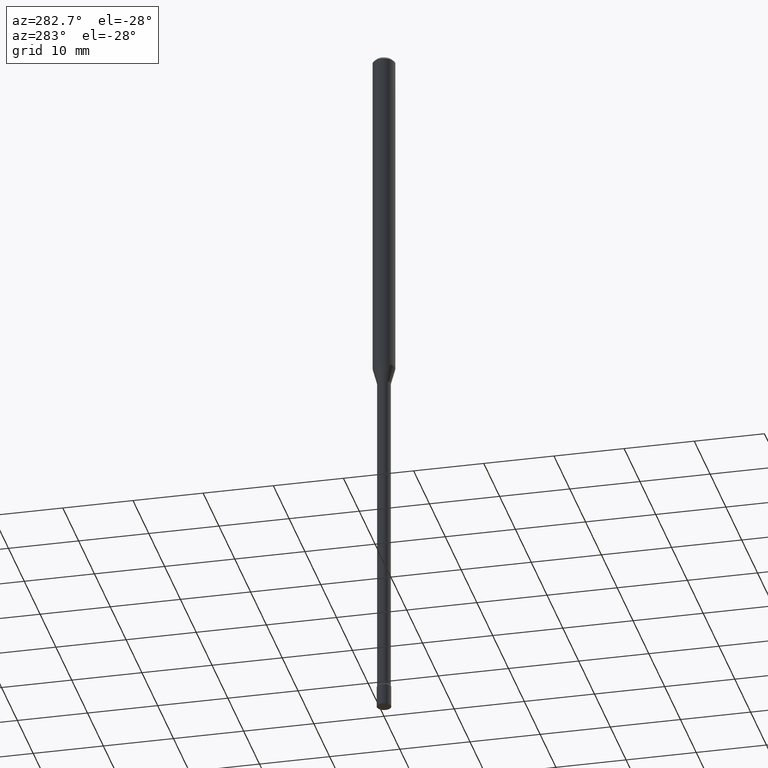
[diagram: clean part render]
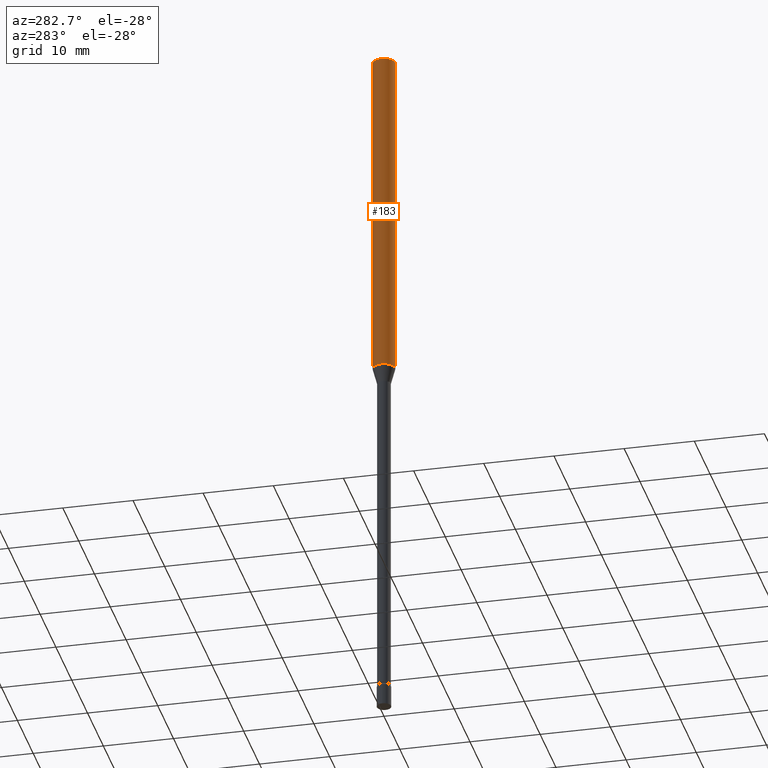
[diagram: same view with one face highlighted and labeled with its STEP entity id]
A machine part, auxiliary view. The second image highlights one B-rep face of the part: STEP entity #183.
In plain terms, the highlighted cylindrical surface (edge-blend (fillet) strip) has radius 1.5875 mm, axis along (-0, 0, 1).
Its self-contained STEP definition (entity closure, byte-faithful):
#2 = AXIS2_PLACEMENT_3D ( 'NONE', #36, #193, #519 ) ;
#16 = ORIENTED_EDGE ( 'NONE', *, *, #358, .F. ) ;
#26 = DIRECTION ( 'NONE',  ( -2.445467241242069311E-29, 3.491483579930689334E-15, 1.000000000000000000 ) ) ;
#31 = FACE_OUTER_BOUND ( 'NONE', #442, .T. ) ;
#36 = CARTESIAN_POINT ( 'NONE',  ( 4.663681943469377038E-29, -6.658510346420442801E-15, -1.907071934891535037 ) ) ;
#41 = CIRCLE ( 'NONE', #108, 0.06250000000000000000 ) ;
#50 = CARTESIAN_POINT ( 'NONE',  ( 3.668200861863111078E-31, -5.237225369896044256E-17, -0.01500000000000003067 ) ) ;
#76 = DIRECTION ( 'NONE',  ( -6.982962677686265922E-15, -1.000000000000000000, 3.491483579930688939E-15 ) ) ;
#99 = CARTESIAN_POINT ( 'NONE',  ( 0.000000000000000000, 0.000000000000000000, 0.000000000000000000 ) ) ;
#102 = EDGE_CURVE ( 'NONE', #189, #355, #353, .T. ) ;
#106 = CARTESIAN_POINT ( 'NONE',  ( 4.440892098500625669E-16, 0.06250000000000000000, -2.182177237456680587E-16 ) ) ;
#108 = AXIS2_PLACEMENT_3D ( 'NONE', #50, #465, #348 ) ;
#110 = EDGE_CURVE ( 'NONE', #189, #425, #342, .T. ) ;
#128 = CARTESIAN_POINT ( 'NONE',  ( -4.364351673553912750E-16, -0.06250000000000005551, -0.01499999999999981209 ) ) ;
#137 = ORIENTED_EDGE ( 'NONE', *, *, #110, .F. ) ;
#183 = ADVANCED_FACE ( 'NONE', ( #31 ), #468, .T. ) ;
#189 = VERTEX_POINT ( 'NONE', #322 ) ;
#190 = EDGE_CURVE ( 'NONE', #355, #247, #320, .T. ) ;
#193 = DIRECTION ( 'NONE',  ( -2.445467241242069311E-29, 3.491483579930688939E-15, 1.000000000000000000 ) ) ;
#213 = AXIS2_PLACEMENT_3D ( 'NONE', #99, #354, #76 ) ;
#244 = CARTESIAN_POINT ( 'NONE',  ( -4.364351673553916201E-16, -0.06250000000000000000, 2.182177237456680587E-16 ) ) ;
#247 = VERTEX_POINT ( 'NONE', #128 ) ;
#306 = DIRECTION ( 'NONE',  ( -2.445467241242069311E-29, 3.491483579930689334E-15, 1.000000000000000000 ) ) ;
#317 = VECTOR ( 'NONE', #26, 39.37007874015748143 ) ;
#320 = LINE ( 'NONE', #244, #317 ) ;
#322 = CARTESIAN_POINT ( 'NONE',  ( 4.440892098501088631E-16, 0.06249999999999330397, -1.907071934891535259 ) ) ;
#334 = CARTESIAN_POINT ( 'NONE',  ( 4.440892098501094548E-16, 0.06249999999999995143, -0.01500000000000024751 ) ) ;
#336 = ORIENTED_EDGE ( 'NONE', *, *, #190, .T. ) ;
#342 = LINE ( 'NONE', #106, #484 ) ;
#348 = DIRECTION ( 'NONE',  ( -6.982962677686265922E-15, -1.000000000000000000, 3.483106191921935554E-15 ) ) ;
#353 = CIRCLE ( 'NONE', #2, 0.06250000000000000000 ) ;
#354 = DIRECTION ( 'NONE',  ( -2.445467241242069311E-29, 3.491483579930688939E-15, 1.000000000000000000 ) ) ;
#355 = VERTEX_POINT ( 'NONE', #405 ) ;
#358 = EDGE_CURVE ( 'NONE', #425, #247, #41, .T. ) ;
#405 = CARTESIAN_POINT ( 'NONE',  ( -4.364351673553452745E-16, -0.06250000000000668909, -1.907071934891534815 ) ) ;
#414 = ORIENTED_EDGE ( 'NONE', *, *, #102, .T. ) ;
#425 = VERTEX_POINT ( 'NONE', #334 ) ;
#442 = EDGE_LOOP ( 'NONE', ( #137, #414, #336, #16 ) ) ;
#465 = DIRECTION ( 'NONE',  ( -2.445467241242069311E-29, 3.491483579930688939E-15, 1.000000000000000000 ) ) ;
#468 = CYLINDRICAL_SURFACE ( 'NONE', #213, 0.06250000000000000000 ) ;
#484 = VECTOR ( 'NONE', #306, 39.37007874015748143 ) ;
#519 = DIRECTION ( 'NONE',  ( -6.982962677686265922E-15, -1.000000000000000000, 4.370956789862821150E-15 ) ) ;